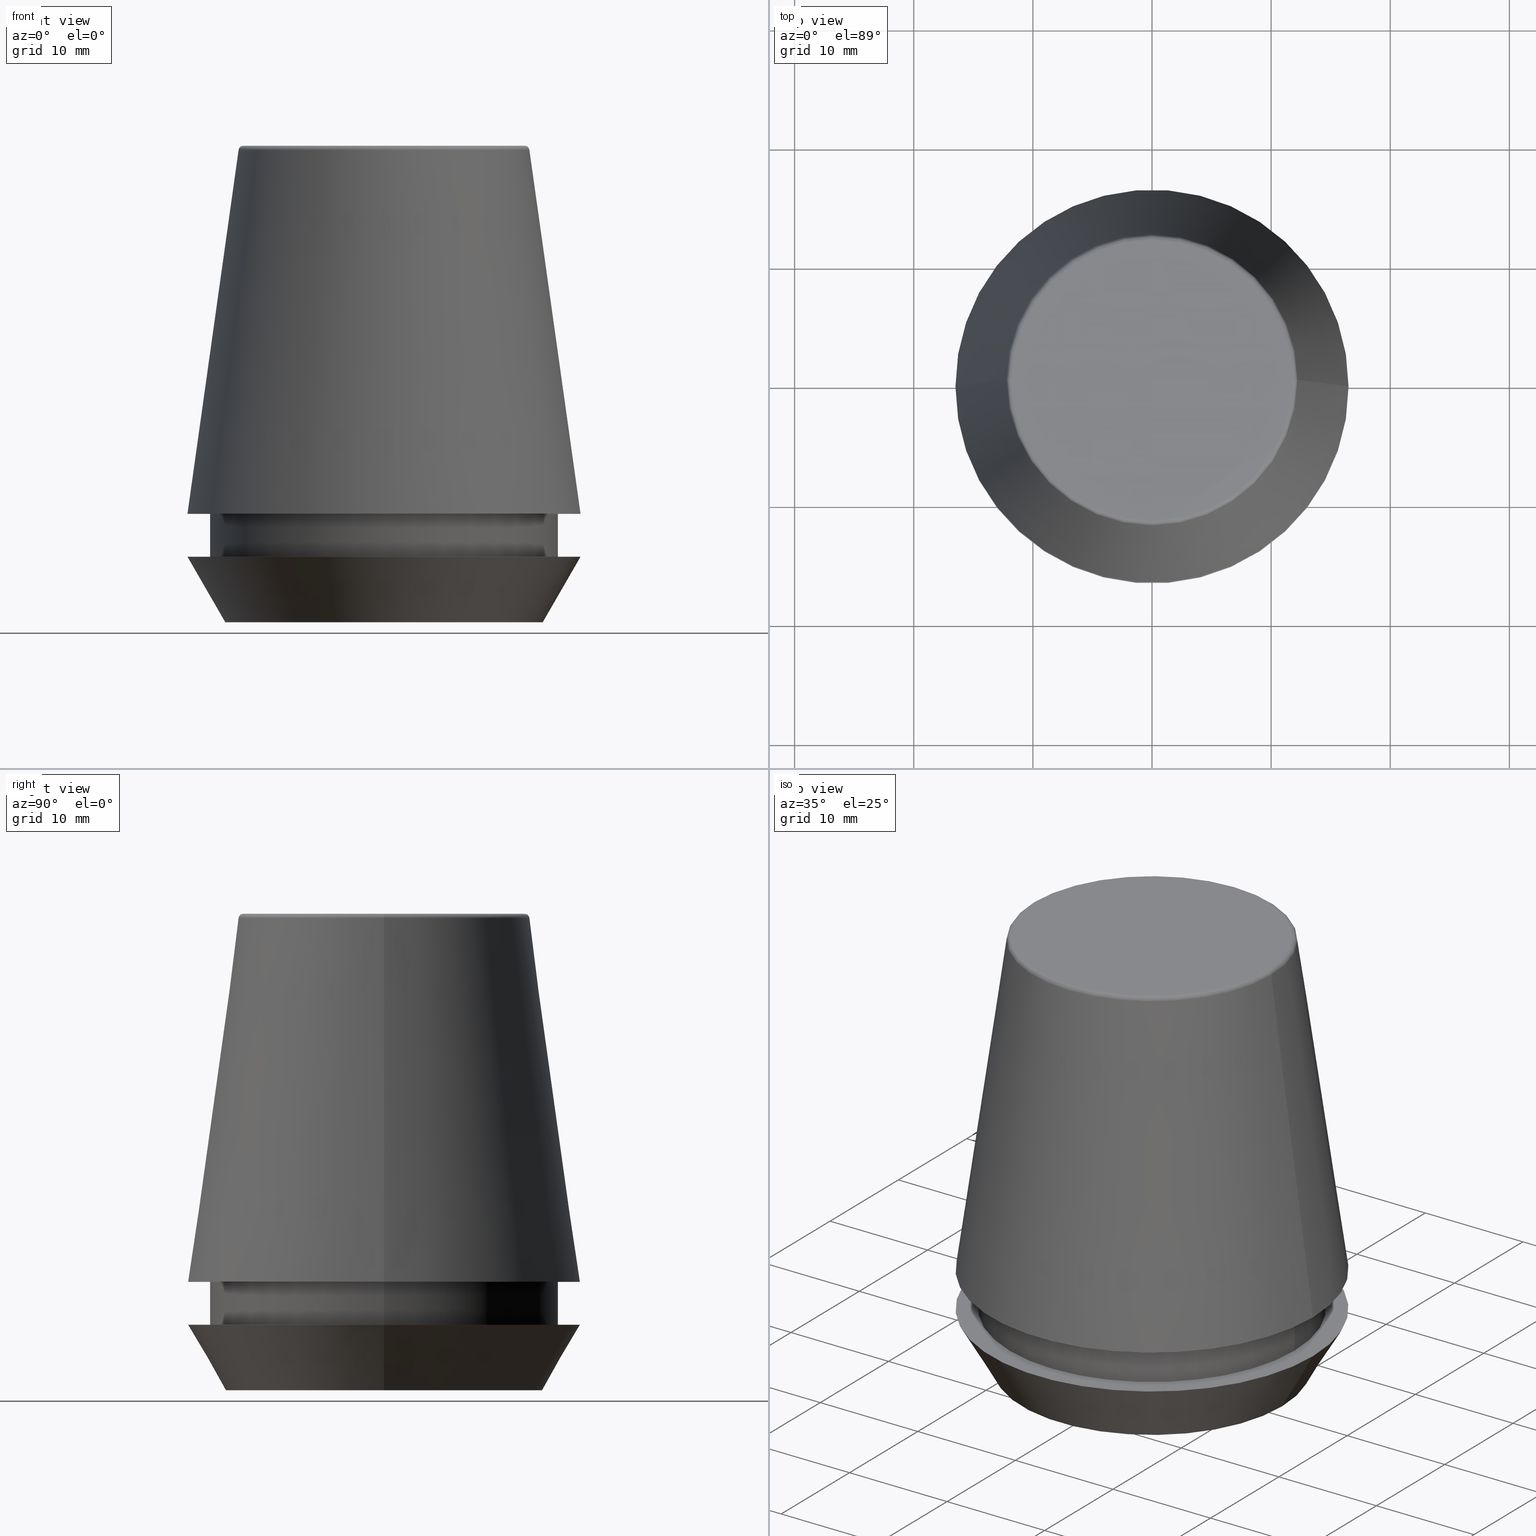
[diagram: canonical four-view strip — front | top / right | iso, engineering-drawing reading convention]
A machine part, canonical four-view strip (front | top / right | iso — engineering-drawing reading convention). The complete STEP part file that produces these views, byte-faithful:
ISO-10303-21;
HEADER;
FILE_DESCRIPTION (( 'STEP AP203' ),
    '1' );
FILE_NAME ('TAP COLLET ER 32G  11.0 X 9.0.STEP',
    '2019-04-09T11:16:00',
    ( '' ),
    ( '' ),
    'SwSTEP 2.0',
    'SolidWorks 2014',
    '' );
FILE_SCHEMA (( 'CONFIG_CONTROL_DESIGN' ));
ENDSEC;

DATA;
#1 = ADVANCED_FACE ( 'NONE', ( #86 ), #58, .T. ) ;
#2 = ORIENTED_EDGE ( 'NONE', *, *, #282, .F. ) ;
#3 = ORIENTED_EDGE ( 'NONE', *, *, #75, .F. ) ;
#4 = DIRECTION ( 'NONE',  ( 1.000000000000000000, 0.0000000000000000000, 0.0000000000000000000 ) ) ;
#5 = AXIS2_PLACEMENT_3D ( 'NONE', #152, #178, #299 ) ;
#6 = EDGE_CURVE ( 'NONE', #21, #205, #277, .T. ) ;
#7 = PERSON_AND_ORGANIZATION_ROLE ( 'classification_officer' ) ;
#8 = ORIENTED_EDGE ( 'NONE', *, *, #48, .T. ) ;
#9 = ADVANCED_FACE ( 'NONE', ( #382, #88 ), #341, .F. ) ;
#10 = VECTOR ( 'NONE', #267, 1000.000000000000000 ) ;
#11 = CIRCLE ( 'NONE', #62, 13.32457351945710200 ) ;
#12 = PERSON_AND_ORGANIZATION_ROLE ( 'creator' ) ;
#13 = COORDINATED_UNIVERSAL_TIME_OFFSET ( 5, 30, .AHEAD. ) ;
#14 = EDGE_CURVE ( 'NONE', #68, #47, #300, .T. ) ;
#15 = LOCAL_TIME ( 16, 46, 0.0000000000000000000, #231 ) ;
#16 = CIRCLE ( 'NONE', #101, 12.20600611160694300 ) ;
#17 = VECTOR ( 'NONE', #297, 1000.000000000000000 ) ;
#18 = PRODUCT_DEFINITION_SHAPE ( 'NONE', 'NONE',  #136 ) ;
#19 = CC_DESIGN_PERSON_AND_ORGANIZATION_ASSIGNMENT ( #268, #332, ( #141 ) ) ;
#20 = FACE_BOUND ( 'NONE', #74, .T. ) ;
#21 = VERTEX_POINT ( 'NONE', #42 ) ;
#22 = PERSON_AND_ORGANIZATION ( #327, #246 ) ;
#23 = APPLICATION_PROTOCOL_DEFINITION ( 'international standard', 'config_control_design', 1994, #230 ) ;
#24 = DATE_AND_TIME ( #322, #376 ) ;
#25 = APPLICATION_CONTEXT ( 'configuration controlled 3d designs of mechanical parts and assemblies' ) ;
#26 = EDGE_CURVE ( 'NONE', #131, #158, #270, .T. ) ;
#27 = DIRECTION ( 'NONE',  ( 1.000000000000000000, 0.0000000000000000000, 0.0000000000000000000 ) ) ;
#28 = CYLINDRICAL_SURFACE ( 'NONE', #239, 14.60000000000000000 ) ;
#29 = PLANE ( 'NONE',  #76 ) ;
#30 = ORIENTED_EDGE ( 'NONE', *, *, #315, .F. ) ;
#31 = AXIS2_PLACEMENT_3D ( 'NONE', #383, #357, #213 ) ;
#32 = CIRCLE ( 'NONE', #362, 14.60000000000000000 ) ;
#33 = DIRECTION ( 'NONE',  ( -0.4999999999999947300, 6.123233995736700700E-017, 0.8660254037844418200 ) ) ;
#34 = CARTESIAN_POINT ( 'NONE',  ( -16.50000000000000000, 2.020667218593133100E-015, 5.500000000000005300 ) ) ;
#35 = CARTESIAN_POINT ( 'NONE',  ( 0.0000000000000000000, 0.0000000000000000000, 0.0000000000000000000 ) ) ;
#36 = ORIENTED_EDGE ( 'NONE', *, *, #172, .T. ) ;
#37 = DIRECTION ( 'NONE',  ( 0.0000000000000000000, 0.0000000000000000000, -1.000000000000000000 ) ) ;
#38 = ADVANCED_FACE ( 'NONE', ( #273 ), #384, .T. ) ;
#39 = AXIS2_PLACEMENT_3D ( 'NONE', #245, #308, #387 ) ;
#40 = FACE_OUTER_BOUND ( 'NONE', #132, .T. ) ;
#41 = EDGE_LOOP ( 'NONE', ( #3, #170, #150, #262 ) ) ;
#42 = CARTESIAN_POINT ( 'NONE',  ( -12.20600611160694300, 0.0000000000000000000, 39.65566924038402900 ) ) ;
#43 = EDGE_CURVE ( 'NONE', #130, #249, #319, .T. ) ;
#44 = CC_DESIGN_APPROVAL ( #54, ( #353 ) ) ;
#45 = APPROVAL_STATUS ( 'not_yet_approved' ) ;
#46 = ORIENTED_EDGE ( 'NONE', *, *, #198, .T. ) ;
#47 = VERTEX_POINT ( 'NONE', #133 ) ;
#48 = EDGE_CURVE ( 'NONE', #278, #261, #56, .T. ) ;
#49 = CIRCLE ( 'NONE', #197, 16.50032537154048700 ) ;
#50 = ADVANCED_FACE ( 'NONE', ( #279 ), #372, .T. ) ;
#51 = AXIS2_PLACEMENT_3D ( 'NONE', #304, #128, #186 ) ;
#52 = LINE ( 'NONE', #339, #10 ) ;
#53 = CARTESIAN_POINT ( 'NONE',  ( 0.0000000000000000000, 0.0000000000000000000, 9.099999999999997900 ) ) ;
#54 = APPROVAL ( #45, 'UNSPECIFIED' ) ;
#55 = ORIENTED_EDGE ( 'NONE', *, *, #43, .T. ) ;
#56 = CIRCLE ( 'NONE', #182, 16.50032537154048700 ) ;
#57 = DIRECTION ( 'NONE',  ( -1.000000000000000000, 0.0000000000000000000, -0.0000000000000000000 ) ) ;
#58 = TOROIDAL_SURFACE ( 'NONE', #189, 11.80989888411031400, 0.4000000000000026900 ) ;
#59 = CARTESIAN_POINT ( 'NONE',  ( 16.50032537154048700, 2.020707065114692300E-015, 9.099999999999997900 ) ) ;
#60 = CALENDAR_DATE ( 2019, 9, 4 ) ;
#61 = DIRECTION ( 'NONE',  ( -0.0000000000000000000, -0.0000000000000000000, 1.000000000000000000 ) ) ;
#62 = AXIS2_PLACEMENT_3D ( 'NONE', #106, #306, #187 ) ;
#63 = CARTESIAN_POINT ( 'NONE',  ( 14.60000000000000000, 0.0000000000000000000, 9.099999999999997900 ) ) ;
#64 = CC_DESIGN_SECURITY_CLASSIFICATION ( #353, ( #164 ) ) ;
#65 = CARTESIAN_POINT ( 'NONE',  ( 0.0000000000000000000, 0.0000000000000000000, 9.099999999999997900 ) ) ;
#66 = EDGE_CURVE ( 'NONE', #126, #236, #11, .T. ) ;
#67 = ORIENTED_EDGE ( 'NONE', *, *, #269, .F. ) ;
#68 = VERTEX_POINT ( 'NONE', #34 ) ;
#69 = MECHANICAL_CONTEXT ( 'NONE', #230, 'mechanical' ) ;
#70 = PERSON_AND_ORGANIZATION ( #327, #246 ) ;
#71 = DIRECTION ( 'NONE',  ( -0.0000000000000000000, -0.0000000000000000000, 1.000000000000000000 ) ) ;
#72 = CALENDAR_DATE ( 2019, 9, 4 ) ;
#73 = ORIENTED_EDGE ( 'NONE', *, *, #302, .F. ) ;
#74 = EDGE_LOOP ( 'NONE', ( #193, #82 ) ) ;
#75 = EDGE_CURVE ( 'NONE', #236, #68, #153, .T. ) ;
#76 = AXIS2_PLACEMENT_3D ( 'NONE', #84, #381, #161 ) ;
#77 = EDGE_LOOP ( 'NONE', ( #160, #177 ) ) ;
#78 = DATE_TIME_ROLE ( 'creation_date' ) ;
#79 = EDGE_CURVE ( 'NONE', #130, #21, #146, .T. ) ;
#80 = LOCAL_TIME ( 16, 46, 0.0000000000000000000, #335 ) ;
#81 = CC_DESIGN_DATE_AND_TIME_ASSIGNMENT ( #220, #223, ( #353 ) ) ;
#82 = ORIENTED_EDGE ( 'NONE', *, *, #172, .F. ) ;
#83 = VECTOR ( 'NONE', #350, 1000.000000000000000 ) ;
#84 = CARTESIAN_POINT ( 'NONE',  ( 0.0000000000000000000, 0.0000000000000000000, 0.0000000000000000000 ) ) ;
#85 =( GEOMETRIC_REPRESENTATION_CONTEXT ( 3 ) GLOBAL_UNCERTAINTY_ASSIGNED_CONTEXT ( ( #254 ) ) GLOBAL_UNIT_ASSIGNED_CONTEXT ( ( #211, #345, #92 ) ) REPRESENTATION_CONTEXT ( 'NONE', 'WORKASPACE' ) );
#86 = FACE_OUTER_BOUND ( 'NONE', #203, .T. ) ;
#87 = DIRECTION ( 'NONE',  ( -0.0000000000000000000, -0.0000000000000000000, 1.000000000000000000 ) ) ;
#88 = FACE_BOUND ( 'NONE', #296, .T. ) ;
#89 = VECTOR ( 'NONE', #154, 1000.000000000000000 ) ;
#90 = DIRECTION ( 'NONE',  ( 1.000000000000000000, 0.0000000000000000000, 0.0000000000000000000 ) ) ;
#91 = DATE_AND_TIME ( #363, #334 ) ;
#92 =( NAMED_UNIT ( * ) SI_UNIT ( $, .STERADIAN. ) SOLID_ANGLE_UNIT ( ) );
#93 = APPROVAL_DATE_TIME ( #24, #159 ) ;
#94 = CARTESIAN_POINT ( 'NONE',  ( 16.50032537154048700, 2.020707065114692300E-015, 9.099999999999997900 ) ) ;
#95 = ORIENTED_EDGE ( 'NONE', *, *, #75, .T. ) ;
#96 = ORIENTED_EDGE ( 'NONE', *, *, #26, .F. ) ;
#97 = DIRECTION ( 'NONE',  ( 1.000000000000000000, 0.0000000000000000000, 0.0000000000000000000 ) ) ;
#98 = FACE_OUTER_BOUND ( 'NONE', #369, .T. ) ;
#99 = CARTESIAN_POINT ( 'NONE',  ( 0.0000000000000000000, 0.0000000000000000000, 5.500000000000005300 ) ) ;
#100 = LINE ( 'NONE', #251, #83 ) ;
#101 = AXIS2_PLACEMENT_3D ( 'NONE', #102, #234, #344 ) ;
#102 = CARTESIAN_POINT ( 'NONE',  ( 0.0000000000000000000, 0.0000000000000000000, 39.65566924038402900 ) ) ;
#103 = ORIENTED_EDGE ( 'NONE', *, *, #79, .F. ) ;
#104 = AXIS2_PLACEMENT_3D ( 'NONE', #99, #321, #90 ) ;
#105 = ORIENTED_EDGE ( 'NONE', *, *, #198, .F. ) ;
#106 = CARTESIAN_POINT ( 'NONE',  ( 0.0000000000000000000, 0.0000000000000000000, 0.0000000000000000000 ) ) ;
#107 = CARTESIAN_POINT ( 'NONE',  ( 14.60000000000000000, 0.0000000000000000000, 5.500000000000005300 ) ) ;
#108 = DIRECTION ( 'NONE',  ( 0.0000000000000000000, 0.0000000000000000000, -1.000000000000000000 ) ) ;
#109 = ORIENTED_EDGE ( 'NONE', *, *, #235, .F. ) ;
#110 = CARTESIAN_POINT ( 'NONE',  ( 0.0000000000000000000, 0.0000000000000000000, 101.8074564848000400 ) ) ;
#111 = FACE_OUTER_BOUND ( 'NONE', #247, .T. ) ;
#112 = CARTESIAN_POINT ( 'NONE',  ( 0.0000000000000000000, 0.0000000000000000000, 0.0000000000000000000 ) ) ;
#113 = APPROVAL ( #316, 'UNSPECIFIED' ) ;
#114 = ORIENTED_EDGE ( 'NONE', *, *, #315, .T. ) ;
#115 = EDGE_LOOP ( 'NONE', ( #103, #207, #377, #139 ) ) ;
#116 = ORIENTED_EDGE ( 'NONE', *, *, #48, .F. ) ;
#117 = CIRCLE ( 'NONE', #31, 14.60000000000000000 ) ;
#118 = LINE ( 'NONE', #183, #17 ) ;
#119 = VERTEX_POINT ( 'NONE', #107 ) ;
#120 = DIRECTION ( 'NONE',  ( 1.224646799147353200E-016, 1.000000000000000000, 0.0000000000000000000 ) ) ;
#121 = VERTEX_POINT ( 'NONE', #242 ) ;
#122 = COORDINATED_UNIVERSAL_TIME_OFFSET ( 5, 30, .AHEAD. ) ;
#123 = PRODUCT_RELATED_PRODUCT_CATEGORY ( 'detail', '', ( #141 ) ) ;
#124 = CARTESIAN_POINT ( 'NONE',  ( 0.0000000000000000000, 0.0000000000000000000, 40.00000000000000700 ) ) ;
#125 = DIRECTION ( 'NONE',  ( 0.0000000000000000000, 0.0000000000000000000, -1.000000000000000000 ) ) ;
#126 = VERTEX_POINT ( 'NONE', #240 ) ;
#127 = CARTESIAN_POINT ( 'NONE',  ( 0.0000000000000000000, 11.80989888411031400, 40.00000000000000700 ) ) ;
#128 = DIRECTION ( 'NONE',  ( -0.0000000000000000000, -0.0000000000000000000, 1.000000000000000000 ) ) ;
#129 = DIRECTION ( 'NONE',  ( 1.000000000000000000, 0.0000000000000000000, 0.0000000000000000000 ) ) ;
#130 = VERTEX_POINT ( 'NONE', #352 ) ;
#131 = VERTEX_POINT ( 'NONE', #63 ) ;
#132 = EDGE_LOOP ( 'NONE', ( #30, #36, #46, #289 ) ) ;
#133 = CARTESIAN_POINT ( 'NONE',  ( 16.50000000000000000, 0.0000000000000000000, 5.500000000000005300 ) ) ;
#134 = FACE_OUTER_BOUND ( 'NONE', #77, .T. ) ;
#135 = CARTESIAN_POINT ( 'NONE',  ( 0.0000000000000000000, 0.0000000000000000000, 5.500000000000005300 ) ) ;
#136 = PRODUCT_DEFINITION ( 'UNKNOWN', '', #164, #293 ) ;
#137 = AXIS2_PLACEMENT_3D ( 'NONE', #35, #71, #129 ) ;
#138 = ADVANCED_FACE ( 'NONE', ( #243 ), #175, .T. ) ;
#139 = ORIENTED_EDGE ( 'NONE', *, *, #375, .F. ) ;
#140 = ORIENTED_EDGE ( 'NONE', *, *, #156, .F. ) ;
#141 = PRODUCT ( 'TAP COLLET ER 32G  11.0 X 9.0', 'TAP COLLET ER 32G  11.0 X 9.0', '', ( #69 ) ) ;
#142 = DIRECTION ( 'NONE',  ( -0.0000000000000000000, -0.0000000000000000000, 1.000000000000000000 ) ) ;
#143 = AXIS2_PLACEMENT_3D ( 'NONE', #343, #346, #57 ) ;
#144 = PERSON_AND_ORGANIZATION ( #327, #246 ) ;
#145 = EDGE_CURVE ( 'NONE', #158, #131, #117, .T. ) ;
#146 = CIRCLE ( 'NONE', #51, 12.20600611160694300 ) ;
#147 = CARTESIAN_POINT ( 'NONE',  ( 0.0000000000000000000, 0.0000000000000000000, 101.8074564848000400 ) ) ;
#148 = DIRECTION ( 'NONE',  ( 0.4999999999999947300, 0.0000000000000000000, 0.8660254037844418200 ) ) ;
#149 = ORIENTED_EDGE ( 'NONE', *, *, #6, .T. ) ;
#150 = ORIENTED_EDGE ( 'NONE', *, *, #271, .T. ) ;
#151 = EDGE_LOOP ( 'NONE', ( #116, #73 ) ) ;
#152 = CARTESIAN_POINT ( 'NONE',  ( 0.0000000000000000000, 0.0000000000000000000, 0.0000000000000000000 ) ) ;
#153 = LINE ( 'NONE', #280, #360 ) ;
#154 = DIRECTION ( 'NONE',  ( 0.1391731009600586900, 1.704378926181473100E-017, -0.9902680687415712500 ) ) ;
#155 = CARTESIAN_POINT ( 'NONE',  ( 0.0000000000000000000, 0.0000000000000000000, 39.60000000000000100 ) ) ;
#156 = EDGE_CURVE ( 'NONE', #249, #205, #317, .T. ) ;
#157 = FACE_OUTER_BOUND ( 'NONE', #325, .T. ) ;
#158 = VERTEX_POINT ( 'NONE', #214 ) ;
#159 = APPROVAL ( #274, 'UNSPECIFIED' ) ;
#160 = ORIENTED_EDGE ( 'NONE', *, *, #156, .T. ) ;
#161 = DIRECTION ( 'NONE',  ( 1.000000000000000000, 0.0000000000000000000, 0.0000000000000000000 ) ) ;
#162 = APPROVAL_PERSON_ORGANIZATION ( #144, #54, #285 ) ;
#163 = DIRECTION ( 'NONE',  ( -0.0000000000000000000, -0.0000000000000000000, 1.000000000000000000 ) ) ;
#164 = PRODUCT_DEFINITION_FORMATION_WITH_SPECIFIED_SOURCE ( 'ANY', '', #141, .NOT_KNOWN. ) ;
#165 = SHAPE_DEFINITION_REPRESENTATION ( #18, #364 ) ;
#166 = CC_DESIGN_APPROVAL ( #159, ( #136 ) ) ;
#167 = PERSON_AND_ORGANIZATION_ROLE ( 'creator' ) ;
#168 = CC_DESIGN_PERSON_AND_ORGANIZATION_ASSIGNMENT ( #70, #167, ( #164 ) ) ;
#169 = EDGE_LOOP ( 'NONE', ( #180, #181 ) ) ;
#170 = ORIENTED_EDGE ( 'NONE', *, *, #269, .T. ) ;
#171 = APPROVAL_DATE_TIME ( #386, #54 ) ;
#172 = EDGE_CURVE ( 'NONE', #121, #119, #32, .T. ) ;
#173 = CC_DESIGN_PERSON_AND_ORGANIZATION_ASSIGNMENT ( #22, #7, ( #353 ) ) ;
#174 = CARTESIAN_POINT ( 'NONE',  ( -11.80989888411031400, 1.446295486667959300E-015, 39.60000000000000100 ) ) ;
#175 = CONICAL_SURFACE ( 'NONE', #303, 16.50032537154048700, 0.1396263401595395900 ) ;
#176 = PLANE ( 'NONE',  #143 ) ;
#177 = ORIENTED_EDGE ( 'NONE', *, *, #282, .T. ) ;
#178 = DIRECTION ( 'NONE',  ( 0.0000000000000000000, 0.0000000000000000000, 1.000000000000000000 ) ) ;
#179 = DIRECTION ( 'NONE',  ( 1.000000000000000000, 0.0000000000000000000, 0.0000000000000000000 ) ) ;
#180 = ORIENTED_EDGE ( 'NONE', *, *, #235, .T. ) ;
#181 = ORIENTED_EDGE ( 'NONE', *, *, #14, .T. ) ;
#182 = AXIS2_PLACEMENT_3D ( 'NONE', #307, #275, #355 ) ;
#183 = CARTESIAN_POINT ( 'NONE',  ( -14.60000000000000000, 1.787984326755135800E-015, 101.8074564848000400 ) ) ;
#184 = AXIS2_PLACEMENT_3D ( 'NONE', #112, #142, #358 ) ;
#185 = CIRCLE ( 'NONE', #226, 11.80989888411031400 ) ;
#186 = DIRECTION ( 'NONE',  ( 1.000000000000000000, 0.0000000000000000000, 0.0000000000000000000 ) ) ;
#187 = DIRECTION ( 'NONE',  ( 1.000000000000000000, 0.0000000000000000000, 0.0000000000000000000 ) ) ;
#188 = DIRECTION ( 'NONE',  ( -0.0000000000000000000, -0.0000000000000000000, 1.000000000000000000 ) ) ;
#189 = AXIS2_PLACEMENT_3D ( 'NONE', #252, #208, #225 ) ;
#190 = DIRECTION ( 'NONE',  ( -1.000000000000000000, 0.0000000000000000000, 0.0000000000000000000 ) ) ;
#191 = AXIS2_PLACEMENT_3D ( 'NONE', #385, #217, #108 ) ;
#192 = DIRECTION ( 'NONE',  ( -0.0000000000000000000, -0.0000000000000000000, 1.000000000000000000 ) ) ;
#193 = ORIENTED_EDGE ( 'NONE', *, *, #248, .F. ) ;
#194 = MANIFOLD_SOLID_BREP ( 'Revolve1', #212 ) ;
#195 = SECURITY_CLASSIFICATION_LEVEL ( 'unclassified' ) ;
#196 = LINE ( 'NONE', #94, #89 ) ;
#197 = AXIS2_PLACEMENT_3D ( 'NONE', #53, #87, #320 ) ;
#198 = EDGE_CURVE ( 'NONE', #119, #131, #52, .T. ) ;
#199 = EDGE_LOOP ( 'NONE', ( #255, #224, #329, #8 ) ) ;
#200 = CIRCLE ( 'NONE', #39, 13.32457351945710200 ) ;
#201 = EDGE_CURVE ( 'NONE', #130, #261, #196, .T. ) ;
#202 = TOROIDAL_SURFACE ( 'NONE', #348, 11.80989888411031400, 0.4000000000000026900 ) ;
#203 = EDGE_LOOP ( 'NONE', ( #318, #149, #140, #351 ) ) ;
#204 = AXIS2_PLACEMENT_3D ( 'NONE', #110, #61, #250 ) ;
#205 = VERTEX_POINT ( 'NONE', #347 ) ;
#206 = CARTESIAN_POINT ( 'NONE',  ( 13.32457351945710200, 0.0000000000000000000, 0.0000000000000000000 ) ) ;
#207 = ORIENTED_EDGE ( 'NONE', *, *, #201, .T. ) ;
#208 = DIRECTION ( 'NONE',  ( -0.0000000000000000000, -0.0000000000000000000, 1.000000000000000000 ) ) ;
#209 = ADVANCED_FACE ( 'NONE', ( #134 ), #301, .F. ) ;
#210 = CC_DESIGN_PERSON_AND_ORGANIZATION_ASSIGNMENT ( #367, #361, ( #164 ) ) ;
#211 =( LENGTH_UNIT ( ) NAMED_UNIT ( * ) SI_UNIT ( .MILLI., .METRE. ) );
#212 = CLOSED_SHELL ( 'NONE', ( #1, #138, #276, #295, #209, #333, #50, #305, #219, #9, #38, #228 ) ) ;
#213 = DIRECTION ( 'NONE',  ( 1.000000000000000000, 0.0000000000000000000, 0.0000000000000000000 ) ) ;
#214 = CARTESIAN_POINT ( 'NONE',  ( -14.60000000000000000, 1.787984326755135800E-015, 9.099999999999997900 ) ) ;
#215 = PERSON_AND_ORGANIZATION ( #327, #246 ) ;
#216 = CC_DESIGN_PERSON_AND_ORGANIZATION_ASSIGNMENT ( #215, #12, ( #136 ) ) ;
#217 = DIRECTION ( 'NONE',  ( 0.0000000000000000000, -1.000000000000000000, 0.0000000000000000000 ) ) ;
#218 = APPROVAL_DATE_TIME ( #374, #113 ) ;
#219 = ADVANCED_FACE ( 'NONE', ( #40 ), #28, .T. ) ;
#220 = DATE_AND_TIME ( #72, #15 ) ;
#221 = CARTESIAN_POINT ( 'NONE',  ( 0.0000000000000000000, 0.0000000000000000000, 9.099999999999997900 ) ) ;
#222 = CC_DESIGN_DATE_AND_TIME_ASSIGNMENT ( #91, #78, ( #136 ) ) ;
#223 = DATE_TIME_ROLE ( 'classification_date' ) ;
#224 = ORIENTED_EDGE ( 'NONE', *, *, #258, .F. ) ;
#225 = DIRECTION ( 'NONE',  ( 1.000000000000000000, 0.0000000000000000000, 0.0000000000000000000 ) ) ;
#226 = AXIS2_PLACEMENT_3D ( 'NONE', #359, #192, #283 ) ;
#227 = CIRCLE ( 'NONE', #229, 16.50000000000000000 ) ;
#228 = ADVANCED_FACE ( 'NONE', ( #266 ), #202, .T. ) ;
#229 = AXIS2_PLACEMENT_3D ( 'NONE', #286, #290, #260 ) ;
#230 = APPLICATION_CONTEXT ( 'configuration controlled 3d designs of mechanical parts and assemblies' ) ;
#231 = COORDINATED_UNIVERSAL_TIME_OFFSET ( 5, 30, .AHEAD. ) ;
#232 = APPLICATION_PROTOCOL_DEFINITION ( 'international standard', 'config_control_design', 1994, #25 ) ;
#233 = CC_DESIGN_APPROVAL ( #113, ( #164 ) ) ;
#234 = DIRECTION ( 'NONE',  ( -0.0000000000000000000, -0.0000000000000000000, 1.000000000000000000 ) ) ;
#235 = EDGE_CURVE ( 'NONE', #47, #68, #227, .T. ) ;
#236 = VERTEX_POINT ( 'NONE', #349 ) ;
#237 = CARTESIAN_POINT ( 'NONE',  ( 11.80989888411031400, 0.0000000000000000000, 40.00000000000000700 ) ) ;
#238 = DIRECTION ( 'NONE',  ( -0.0000000000000000000, -0.0000000000000000000, 1.000000000000000000 ) ) ;
#239 = AXIS2_PLACEMENT_3D ( 'NONE', #147, #263, #179 ) ;
#240 = CARTESIAN_POINT ( 'NONE',  ( 13.32457351945710200, 0.0000000000000000000, 0.0000000000000000000 ) ) ;
#241 = ORIENTED_EDGE ( 'NONE', *, *, #145, .T. ) ;
#242 = CARTESIAN_POINT ( 'NONE',  ( -14.60000000000000000, 1.787984326755135800E-015, 5.500000000000005300 ) ) ;
#243 = FACE_OUTER_BOUND ( 'NONE', #115, .T. ) ;
#244 = COORDINATED_UNIVERSAL_TIME_OFFSET ( 5, 30, .AHEAD. ) ;
#245 = CARTESIAN_POINT ( 'NONE',  ( 0.0000000000000000000, 0.0000000000000000000, 0.0000000000000000000 ) ) ;
#246 = ORGANIZATION ( 'UNSPECIFIED', 'UNSPECIFIED', '' ) ;
#247 = EDGE_LOOP ( 'NONE', ( #336, #67 ) ) ;
#248 = EDGE_CURVE ( 'NONE', #119, #121, #264, .T. ) ;
#249 = VERTEX_POINT ( 'NONE', #237 ) ;
#250 = DIRECTION ( 'NONE',  ( 1.000000000000000000, 0.0000000000000000000, 0.0000000000000000000 ) ) ;
#251 = CARTESIAN_POINT ( 'NONE',  ( -16.50032537154048700, 0.0000000000000000000, 9.099999999999997900 ) ) ;
#252 = CARTESIAN_POINT ( 'NONE',  ( 0.0000000000000000000, 0.0000000000000000000, 39.60000000000000100 ) ) ;
#253 = AXIS2_PLACEMENT_3D ( 'NONE', #221, #37, #190 ) ;
#254 = UNCERTAINTY_MEASURE_WITH_UNIT (LENGTH_MEASURE( 1.000000000000000100E-005 ), #211, 'distance_accuracy_value', 'NONE');
#255 = ORIENTED_EDGE ( 'NONE', *, *, #201, .F. ) ;
#256 = LINE ( 'NONE', #206, #371 ) ;
#257 = APPROVAL_PERSON_ORGANIZATION ( #314, #113, #338 ) ;
#258 = EDGE_CURVE ( 'NONE', #21, #130, #16, .T. ) ;
#259 = CARTESIAN_POINT ( 'NONE',  ( 0.0000000000000000000, 0.0000000000000000000, 5.500000000000005300 ) ) ;
#260 = DIRECTION ( 'NONE',  ( 1.000000000000000000, 0.0000000000000000000, 0.0000000000000000000 ) ) ;
#261 = VERTEX_POINT ( 'NONE', #59 ) ;
#262 = ORIENTED_EDGE ( 'NONE', *, *, #14, .F. ) ;
#263 = DIRECTION ( 'NONE',  ( -0.0000000000000000000, -0.0000000000000000000, 1.000000000000000000 ) ) ;
#264 = CIRCLE ( 'NONE', #104, 14.60000000000000000 ) ;
#265 = AXIS2_PLACEMENT_3D ( 'NONE', #356, #188, #281 ) ;
#266 = FACE_OUTER_BOUND ( 'NONE', #373, .T. ) ;
#267 = DIRECTION ( 'NONE',  ( -0.0000000000000000000, -0.0000000000000000000, 1.000000000000000000 ) ) ;
#268 = PERSON_AND_ORGANIZATION ( #327, #246 ) ;
#269 = EDGE_CURVE ( 'NONE', #236, #126, #200, .T. ) ;
#270 = CIRCLE ( 'NONE', #265, 14.60000000000000000 ) ;
#271 = EDGE_CURVE ( 'NONE', #126, #47, #256, .T. ) ;
#272 = AXIS2_PLACEMENT_3D ( 'NONE', #312, #337, #4 ) ;
#273 = FACE_OUTER_BOUND ( 'NONE', #199, .T. ) ;
#274 = APPROVAL_STATUS ( 'not_yet_approved' ) ;
#275 = DIRECTION ( 'NONE',  ( -0.0000000000000000000, -0.0000000000000000000, 1.000000000000000000 ) ) ;
#276 = ADVANCED_FACE ( 'NONE', ( #157 ), #284, .T. ) ;
#277 = CIRCLE ( 'NONE', #310, 0.4000000000000028000 ) ;
#278 = VERTEX_POINT ( 'NONE', #311 ) ;
#279 = FACE_OUTER_BOUND ( 'NONE', #41, .T. ) ;
#280 = CARTESIAN_POINT ( 'NONE',  ( -13.32457351945710200, 1.631789631060672300E-015, 0.0000000000000000000 ) ) ;
#281 = DIRECTION ( 'NONE',  ( 1.000000000000000000, 0.0000000000000000000, 0.0000000000000000000 ) ) ;
#282 = EDGE_CURVE ( 'NONE', #205, #249, #185, .T. ) ;
#283 = DIRECTION ( 'NONE',  ( 1.000000000000000000, 0.0000000000000000000, 0.0000000000000000000 ) ) ;
#284 = CYLINDRICAL_SURFACE ( 'NONE', #204, 14.60000000000000000 ) ;
#285 = APPROVAL_ROLE ( '' ) ;
#286 = CARTESIAN_POINT ( 'NONE',  ( 0.0000000000000000000, 0.0000000000000000000, 5.500000000000005300 ) ) ;
#287 = APPROVAL_PERSON_ORGANIZATION ( #298, #159, #366 ) ;
#288 = ORIENTED_EDGE ( 'NONE', *, *, #6, .F. ) ;
#289 = ORIENTED_EDGE ( 'NONE', *, *, #145, .F. ) ;
#290 = DIRECTION ( 'NONE',  ( -0.0000000000000000000, -0.0000000000000000000, 1.000000000000000000 ) ) ;
#291 = LOCAL_TIME ( 16, 46, 0.0000000000000000000, #244 ) ;
#292 = AXIS2_PLACEMENT_3D ( 'NONE', #135, #163, #309 ) ;
#293 = DESIGN_CONTEXT ( 'detailed design', #25, 'design' ) ;
#294 = DIRECTION ( 'NONE',  ( -0.0000000000000000000, -0.0000000000000000000, 1.000000000000000000 ) ) ;
#295 = ADVANCED_FACE ( 'NONE', ( #98 ), #342, .T. ) ;
#296 = EDGE_LOOP ( 'NONE', ( #326, #241 ) ) ;
#297 = DIRECTION ( 'NONE',  ( -0.0000000000000000000, -0.0000000000000000000, 1.000000000000000000 ) ) ;
#298 = PERSON_AND_ORGANIZATION ( #327, #246 ) ;
#299 = DIRECTION ( 'NONE',  ( 1.000000000000000000, 0.0000000000000000000, 0.0000000000000000000 ) ) ;
#300 = CIRCLE ( 'NONE', #292, 16.50000000000000000 ) ;
#301 = PLANE ( 'NONE',  #324 ) ;
#302 = EDGE_CURVE ( 'NONE', #261, #278, #49, .T. ) ;
#303 = AXIS2_PLACEMENT_3D ( 'NONE', #65, #330, #380 ) ;
#304 = CARTESIAN_POINT ( 'NONE',  ( 0.0000000000000000000, 0.0000000000000000000, 39.65566924038402900 ) ) ;
#305 = ADVANCED_FACE ( 'NONE', ( #20, #379 ), #176, .F. ) ;
#306 = DIRECTION ( 'NONE',  ( -0.0000000000000000000, -0.0000000000000000000, 1.000000000000000000 ) ) ;
#307 = CARTESIAN_POINT ( 'NONE',  ( 0.0000000000000000000, 0.0000000000000000000, 9.099999999999997900 ) ) ;
#308 = DIRECTION ( 'NONE',  ( -0.0000000000000000000, -0.0000000000000000000, 1.000000000000000000 ) ) ;
#309 = DIRECTION ( 'NONE',  ( 1.000000000000000000, 0.0000000000000000000, 0.0000000000000000000 ) ) ;
#310 = AXIS2_PLACEMENT_3D ( 'NONE', #174, #120, #368 ) ;
#311 = CARTESIAN_POINT ( 'NONE',  ( -16.50032537154048700, 0.0000000000000000000, 9.099999999999997900 ) ) ;
#312 = CARTESIAN_POINT ( 'NONE',  ( 0.0000000000000000000, 16.50032537154048700, 9.099999999999999600 ) ) ;
#313 = ORIENTED_EDGE ( 'NONE', *, *, #248, .T. ) ;
#314 = PERSON_AND_ORGANIZATION ( #327, #246 ) ;
#315 = EDGE_CURVE ( 'NONE', #121, #158, #118, .T. ) ;
#316 = APPROVAL_STATUS ( 'not_yet_approved' ) ;
#317 = CIRCLE ( 'NONE', #370, 11.80989888411031400 ) ;
#318 = ORIENTED_EDGE ( 'NONE', *, *, #79, .T. ) ;
#319 = CIRCLE ( 'NONE', #191, 0.4000000000000045200 ) ;
#320 = DIRECTION ( 'NONE',  ( 1.000000000000000000, 0.0000000000000000000, 0.0000000000000000000 ) ) ;
#321 = DIRECTION ( 'NONE',  ( -0.0000000000000000000, -0.0000000000000000000, 1.000000000000000000 ) ) ;
#322 = CALENDAR_DATE ( 2019, 9, 4 ) ;
#323 = DIRECTION ( 'NONE',  ( -1.000000000000000000, 0.0000000000000000000, -0.0000000000000000000 ) ) ;
#324 = AXIS2_PLACEMENT_3D ( 'NONE', #127, #125, #323 ) ;
#325 = EDGE_LOOP ( 'NONE', ( #313, #114, #96, #105 ) ) ;
#326 = ORIENTED_EDGE ( 'NONE', *, *, #26, .T. ) ;
#327 = PERSON ( 'UNSPECIFIED', 'UNSPECIFIED', 'UNSPECIFIED', ('UNSPECIFIED'), ('UNSPECIFIED'), ('UNSPECIFIED') ) ;
#328 = DIRECTION ( 'NONE',  ( 1.000000000000000000, 0.0000000000000000000, 0.0000000000000000000 ) ) ;
#329 = ORIENTED_EDGE ( 'NONE', *, *, #375, .T. ) ;
#330 = DIRECTION ( 'NONE',  ( 0.0000000000000000000, 0.0000000000000000000, -1.000000000000000000 ) ) ;
#331 = CALENDAR_DATE ( 2019, 9, 4 ) ;
#332 = PERSON_AND_ORGANIZATION_ROLE ( 'design_owner' ) ;
#333 = ADVANCED_FACE ( 'NONE', ( #111 ), #29, .F. ) ;
#334 = LOCAL_TIME ( 16, 46, 0.0000000000000000000, #122 ) ;
#335 = COORDINATED_UNIVERSAL_TIME_OFFSET ( 5, 30, .AHEAD. ) ;
#336 = ORIENTED_EDGE ( 'NONE', *, *, #66, .F. ) ;
#337 = DIRECTION ( 'NONE',  ( 0.0000000000000000000, -0.0000000000000000000, 1.000000000000000000 ) ) ;
#338 = APPROVAL_ROLE ( '' ) ;
#339 = CARTESIAN_POINT ( 'NONE',  ( 14.60000000000000000, 0.0000000000000000000, 101.8074564848000400 ) ) ;
#340 = ORIENTED_EDGE ( 'NONE', *, *, #271, .F. ) ;
#341 = PLANE ( 'NONE',  #272 ) ;
#342 = CONICAL_SURFACE ( 'NONE', #184, 13.32457351945710200, 0.5235987755982927100 ) ;
#343 = CARTESIAN_POINT ( 'NONE',  ( 0.0000000000000000000, 16.50000000000000000, 5.500000000000002700 ) ) ;
#344 = DIRECTION ( 'NONE',  ( 1.000000000000000000, 0.0000000000000000000, 0.0000000000000000000 ) ) ;
#345 =( NAMED_UNIT ( * ) PLANE_ANGLE_UNIT ( ) SI_UNIT ( $, .RADIAN. ) );
#346 = DIRECTION ( 'NONE',  ( 0.0000000000000000000, 0.0000000000000000000, -1.000000000000000000 ) ) ;
#347 = CARTESIAN_POINT ( 'NONE',  ( -11.80989888411031400, 1.470550059081603400E-015, 40.00000000000000700 ) ) ;
#348 = AXIS2_PLACEMENT_3D ( 'NONE', #155, #378, #97 ) ;
#349 = CARTESIAN_POINT ( 'NONE',  ( -13.32457351945710200, 1.826228424826902600E-015, 0.0000000000000000000 ) ) ;
#350 = DIRECTION ( 'NONE',  ( -0.1391731009600586900, 0.0000000000000000000, -0.9902680687415712500 ) ) ;
#351 = ORIENTED_EDGE ( 'NONE', *, *, #43, .F. ) ;
#352 = CARTESIAN_POINT ( 'NONE',  ( 12.20600611160694300, 1.757755848304969800E-015, 39.65566924038402900 ) ) ;
#353 = SECURITY_CLASSIFICATION ( '', '', #195 ) ;
#354 = ORIENTED_EDGE ( 'NONE', *, *, #66, .T. ) ;
#355 = DIRECTION ( 'NONE',  ( 1.000000000000000000, 0.0000000000000000000, 0.0000000000000000000 ) ) ;
#356 = CARTESIAN_POINT ( 'NONE',  ( 0.0000000000000000000, 0.0000000000000000000, 9.099999999999997900 ) ) ;
#357 = DIRECTION ( 'NONE',  ( -0.0000000000000000000, -0.0000000000000000000, 1.000000000000000000 ) ) ;
#358 = DIRECTION ( 'NONE',  ( 1.000000000000000000, 0.0000000000000000000, 0.0000000000000000000 ) ) ;
#359 = CARTESIAN_POINT ( 'NONE',  ( 0.0000000000000000000, 0.0000000000000000000, 40.00000000000000700 ) ) ;
#360 = VECTOR ( 'NONE', #33, 999.9999999999998900 ) ;
#361 = PERSON_AND_ORGANIZATION_ROLE ( 'design_supplier' ) ;
#362 = AXIS2_PLACEMENT_3D ( 'NONE', #259, #238, #27 ) ;
#363 = CALENDAR_DATE ( 2019, 9, 4 ) ;
#364 = ADVANCED_BREP_SHAPE_REPRESENTATION ( 'TAP COLLET ER 32G  11.0 X 9.0', ( #194, #5 ), #85 ) ;
#365 = ORIENTED_EDGE ( 'NONE', *, *, #258, .T. ) ;
#366 = APPROVAL_ROLE ( '' ) ;
#367 = PERSON_AND_ORGANIZATION ( #327, #246 ) ;
#368 = DIRECTION ( 'NONE',  ( -1.000000000000000000, 1.224646799147352500E-016, 0.0000000000000000000 ) ) ;
#369 = EDGE_LOOP ( 'NONE', ( #354, #95, #109, #340 ) ) ;
#370 = AXIS2_PLACEMENT_3D ( 'NONE', #124, #294, #328 ) ;
#371 = VECTOR ( 'NONE', #148, 999.9999999999998900 ) ;
#372 = CONICAL_SURFACE ( 'NONE', #137, 13.32457351945710200, 0.5235987755982927100 ) ;
#373 = EDGE_LOOP ( 'NONE', ( #288, #365, #55, #2 ) ) ;
#374 = DATE_AND_TIME ( #331, #291 ) ;
#375 = EDGE_CURVE ( 'NONE', #21, #278, #100, .T. ) ;
#376 = LOCAL_TIME ( 16, 46, 0.0000000000000000000, #13 ) ;
#377 = ORIENTED_EDGE ( 'NONE', *, *, #302, .T. ) ;
#378 = DIRECTION ( 'NONE',  ( -0.0000000000000000000, -0.0000000000000000000, 1.000000000000000000 ) ) ;
#379 = FACE_OUTER_BOUND ( 'NONE', #169, .T. ) ;
#380 = DIRECTION ( 'NONE',  ( -1.000000000000000000, 0.0000000000000000000, 0.0000000000000000000 ) ) ;
#381 = DIRECTION ( 'NONE',  ( 0.0000000000000000000, -0.0000000000000000000, 1.000000000000000000 ) ) ;
#382 = FACE_OUTER_BOUND ( 'NONE', #151, .T. ) ;
#383 = CARTESIAN_POINT ( 'NONE',  ( 0.0000000000000000000, 0.0000000000000000000, 9.099999999999997900 ) ) ;
#384 = CONICAL_SURFACE ( 'NONE', #253, 16.50032537154048700, 0.1396263401595395900 ) ;
#385 = CARTESIAN_POINT ( 'NONE',  ( 11.80989888411031400, 0.0000000000000000000, 39.60000000000000100 ) ) ;
#386 = DATE_AND_TIME ( #60, #80 ) ;
#387 = DIRECTION ( 'NONE',  ( 1.000000000000000000, 0.0000000000000000000, 0.0000000000000000000 ) ) ;
ENDSEC;
END-ISO-10303-21;
